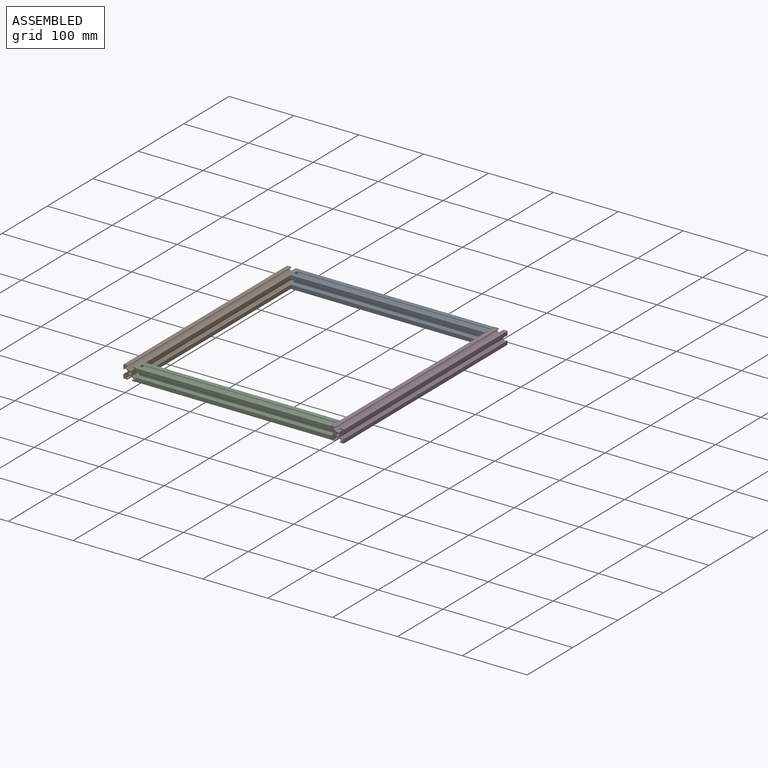
[diagram: assembled view]
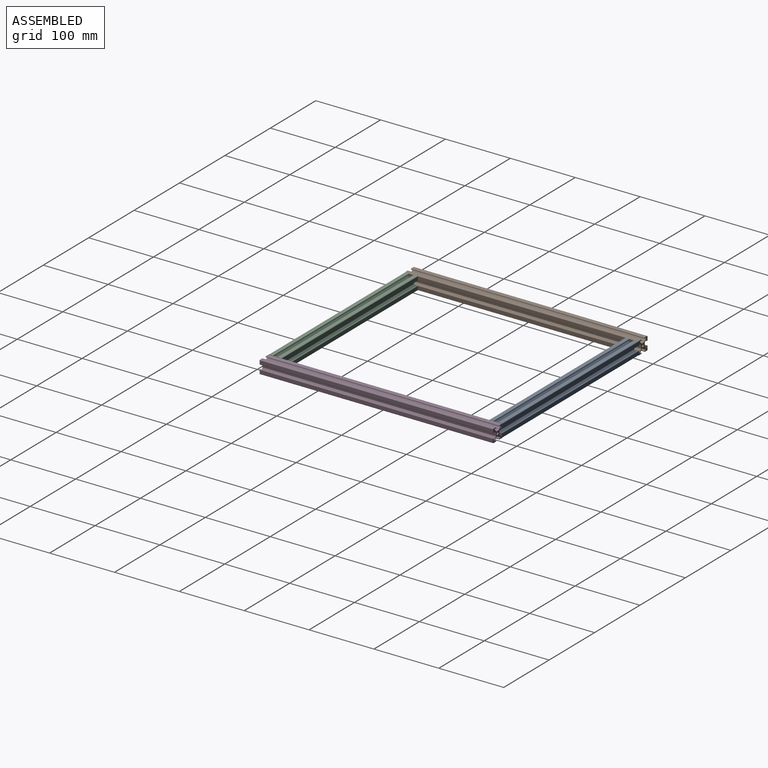
[diagram: assembled view, second angle]
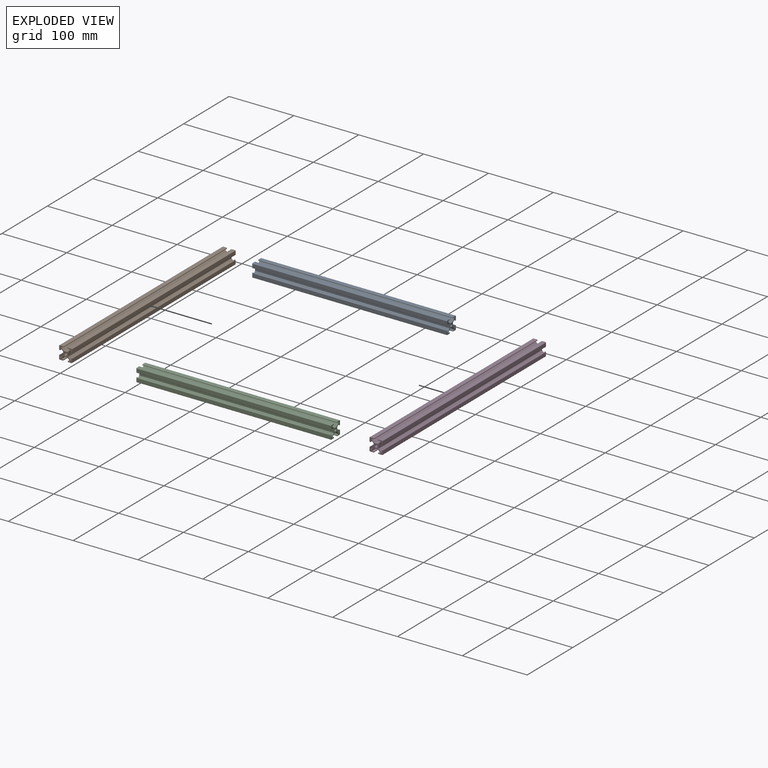
[diagram: exploded view]
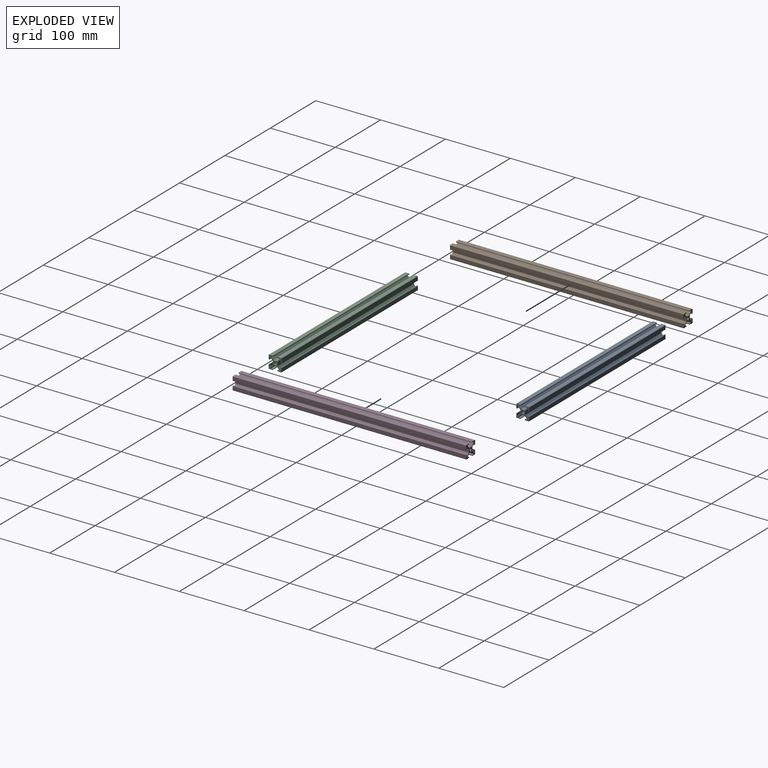
[diagram: exploded view, second angle]
ASSEMBLY  parts=4 mates=3
PART A: 59 faces, bbox 20x20x300 mm
  f0: plane 300x1.04mm, normal (0,-1,0), area 311.8mm2, adj f1,f56,f57,f58
  f1: plane 300x3.81mm, normal (-0.71,-0.71,0), area 1616.7mm2, adj f0,f2,f57,f58
  f2: plane 300x5.38mm, normal (-1,0,0), area 1613.6mm2, adj f1,f3,f57,f58
  f3: plane 300x3.81mm, normal (-0.71,0.71,0), area 1616.7mm2, adj f2,f4,f57,f58
  f4: plane 300x1.04mm, normal (0,1,0), area 311.8mm2, adj f3,f5,f57,f58
  f5: plane 300x3.25mm, normal (1,0,0), area 975mm2, adj f4,f6,f57,f58
  f6: plane 300x0.6mm, normal (0,1,0), area 180mm2, adj f5,f7,f57,f58
  f7: cylinder r=0.8mm len=300mm, axis (0,0,-1), area 377mm2, adj f6,f8,f57,f58
  f8: plane 300x5.15mm, normal (-1,0,0), area 1545mm2, adj f7,f9,f57,f58
  f9: cylinder r=0.8mm len=300mm, axis (0,0,-1), area 377mm2, adj f8,f10,f57,f58
  f10: plane 300x5.15mm, normal (0,-1,0), area 1545mm2, adj f9,f11,f57,f58
  f11: cylinder r=0.8mm len=300mm, axis (0,0,-1), area 377mm2, adj f10,f12,f57,f58
  f12: plane 300x0.6mm, normal (1,0,0), area 180mm2, adj f11,f13,f57,f58
  f13: plane 300x3.25mm, normal (0,1,0), area 975mm2, adj f12,f14,f57,f58
  f14: plane 300x1.04mm, normal (1,0,0), area 311.8mm2, adj f13,f15,f57,f58
  f15: plane 300x3.81mm, normal (0.71,-0.71,0), area 1616.7mm2, adj f14,f16,f57,f58
  f16: plane 300x5.38mm, normal (0,-1,0), area 1613.6mm2, adj f15,f17,f57,f58
  f17: plane 300x3.81mm, normal (-0.71,-0.71,0), area 1616.7mm2, adj f16,f18,f57,f58
  f18: plane 300x1.04mm, normal (-1,0,0), area 311.8mm2, adj f17,f19,f57,f58
  f19: plane 300x3.25mm, normal (0,1,0), area 975mm2, adj f18,f20,f57,f58
  f20: plane 300x0.6mm, normal (-1,0,0), area 180mm2, adj f19,f21,f57,f58
  f21: cylinder r=0.8mm len=300mm, axis (0,0,-1), area 377mm2, adj f20,f22,f57,f58
  f22: plane 300x5.15mm, normal (0,-1,0), area 1545mm2, adj f21,f23,f57,f58
  f23: cylinder r=0.8mm len=300mm, axis (0,0,-1), area 377mm2, adj f22,f24,f57,f58
  f24: plane 300x5.15mm, normal (1,0,0), area 1545mm2, adj f23,f25,f57,f58
  f25: cylinder r=0.8mm len=300mm, axis (0,0,-1), area 377mm2, adj f24,f26,f57,f58
  f26: plane 300x0.6mm, normal (0,1,0), area 180mm2, adj f25,f27,f57,f58
  f27: plane 300x3.25mm, normal (-1,0,0), area 975mm2, adj f26,f28,f57,f58
  f28: plane 300x1.04mm, normal (0,1,0), area 311.8mm2, adj f27,f29,f57,f58
  f29: plane 300x3.81mm, normal (0.71,0.71,0), area 1616.7mm2, adj f28,f30,f57,f58
  f30: plane 300x5.38mm, normal (1,0,0), area 1613.6mm2, adj f29,f31,f57,f58
  f31: plane 300x3.81mm, normal (0.71,-0.71,0), area 1616.7mm2, adj f30,f32,f57,f58
  f32: plane 300x1.04mm, normal (0,-1,0), area 311.8mm2, adj f31,f33,f57,f58
  f33: plane 300x3.25mm, normal (-1,0,0), area 975mm2, adj f32,f34,f57,f58
  f34: plane 300x0.6mm, normal (0,-1,0), area 180mm2, adj f33,f35,f57,f58
  f35: cylinder r=0.8mm len=300mm, axis (0,0,-1), area 377mm2, adj f34,f36,f57,f58
  f36: plane 300x5.15mm, normal (1,0,0), area 1545mm2, adj f35,f37,f57,f58
  f37: cylinder r=0.8mm len=300mm, axis (0,0,-1), area 377mm2, adj f36,f38,f57,f58
  f38: plane 300x5.15mm, normal (0,1,0), area 1545mm2, adj f37,f39,f57,f58
  f39: cylinder r=0.8mm len=300mm, axis (0,0,-1), area 377mm2, adj f38,f40,f57,f58
  f40: plane 300x0.6mm, normal (-1,0,0), area 180mm2, adj f39,f41,f57,f58
  f41: plane 300x3.25mm, normal (0,-1,0), area 975mm2, adj f40,f42,f57,f58
  f42: plane 300x1.04mm, normal (-1,0,0), area 311.8mm2, adj f41,f43,f57,f58
  f43: plane 300x3.81mm, normal (-0.71,0.71,0), area 1616.7mm2, adj f42,f44,f57,f58
  f44: plane 300x5.38mm, normal (0,1,0), area 1613.6mm2, adj f43,f45,f57,f58
  f45: plane 300x3.81mm, normal (0.71,0.71,0), area 1616.7mm2, adj f44,f46,f57,f58
  f46: plane 300x1.04mm, normal (1,0,0), area 311.8mm2, adj f45,f47,f57,f58
  f47: plane 300x3.25mm, normal (0,-1,0), area 975mm2, adj f46,f48,f57,f58
  f48: plane 300x0.6mm, normal (1,0,0), area 180mm2, adj f47,f49,f57,f58
  f49: cylinder r=0.8mm len=300mm, axis (0,0,-1), area 377mm2, adj f48,f50,f57,f58
  f50: plane 300x5.15mm, normal (0,1,0), area 1545mm2, adj f49,f51,f57,f58
  f51: cylinder r=0.8mm len=300mm, axis (0,0,-1), area 377mm2, adj f50,f52,f57,f58
  f52: plane 300x5.15mm, normal (-1,0,0), area 1545mm2, adj f51,f53,f57,f58
  f53: cylinder r=0.8mm len=300mm, axis (0,0,-1), area 377mm2, adj f52,f54,f57,f58
  f54: plane 300x0.6mm, normal (0,-1,0), area 180mm2, adj f53,f56,f57,f58
  f55: cylinder r=2.15mm len=300mm, axis (0,0,-1), area 4052.7mm2, adj f57,f58
  f56: plane 300x3.25mm, normal (1,0,0), area 975mm2, adj f0,f54,f57,f58
  f57: plane 20x20mm, normal (0,0,1), area 153.3mm2, adj f0,f1,f2,f3,f4,f5,f6,f7
  f58: plane 20x20mm, normal (0,0,-1), area 153.3mm2, adj f0,f1,f2,f3,f4,f5,f6,f7
PART B: 59 faces, bbox 20x20x360 mm
  f0: plane 360x1.04mm, normal (0,-1,0), area 374.2mm2, adj f1,f56,f57,f58
  f1: plane 360x3.81mm, normal (-0.71,-0.71,0), area 1940.1mm2, adj f0,f2,f57,f58
  f2: plane 360x5.38mm, normal (-1,0,0), area 1936.3mm2, adj f1,f3,f57,f58
  f3: plane 360x3.81mm, normal (-0.71,0.71,0), area 1940.1mm2, adj f2,f4,f57,f58
  f4: plane 360x1.04mm, normal (0,1,0), area 374.2mm2, adj f3,f5,f57,f58
  f5: plane 360x3.25mm, normal (1,0,0), area 1170mm2, adj f4,f6,f57,f58
  f6: plane 360x0.6mm, normal (0,1,0), area 216mm2, adj f5,f7,f57,f58
  f7: cylinder r=0.8mm len=360mm, axis (0,0,-1), area 452.4mm2, adj f6,f8,f57,f58
  f8: plane 360x5.15mm, normal (-1,0,0), area 1854mm2, adj f7,f9,f57,f58
  f9: cylinder r=0.8mm len=360mm, axis (0,0,-1), area 452.4mm2, adj f8,f10,f57,f58
  f10: plane 360x5.15mm, normal (0,-1,0), area 1854mm2, adj f9,f11,f57,f58
  f11: cylinder r=0.8mm len=360mm, axis (0,0,-1), area 452.4mm2, adj f10,f12,f57,f58
  f12: plane 360x0.6mm, normal (1,0,0), area 216mm2, adj f11,f13,f57,f58
  f13: plane 360x3.25mm, normal (0,1,0), area 1170mm2, adj f12,f14,f57,f58
  f14: plane 360x1.04mm, normal (1,0,0), area 374.2mm2, adj f13,f15,f57,f58
  f15: plane 360x3.81mm, normal (0.71,-0.71,0), area 1940.1mm2, adj f14,f16,f57,f58
  f16: plane 360x5.38mm, normal (0,-1,0), area 1936.3mm2, adj f15,f17,f57,f58
  f17: plane 360x3.81mm, normal (-0.71,-0.71,0), area 1940.1mm2, adj f16,f18,f57,f58
  f18: plane 360x1.04mm, normal (-1,0,0), area 374.2mm2, adj f17,f19,f57,f58
  f19: plane 360x3.25mm, normal (0,1,0), area 1170mm2, adj f18,f20,f57,f58
  f20: plane 360x0.6mm, normal (-1,0,0), area 216mm2, adj f19,f21,f57,f58
  f21: cylinder r=0.8mm len=360mm, axis (0,0,-1), area 452.4mm2, adj f20,f22,f57,f58
  f22: plane 360x5.15mm, normal (0,-1,0), area 1854mm2, adj f21,f23,f57,f58
  f23: cylinder r=0.8mm len=360mm, axis (0,0,-1), area 452.4mm2, adj f22,f24,f57,f58
  f24: plane 360x5.15mm, normal (1,0,0), area 1854mm2, adj f23,f25,f57,f58
  f25: cylinder r=0.8mm len=360mm, axis (0,0,-1), area 452.4mm2, adj f24,f26,f57,f58
  f26: plane 360x0.6mm, normal (0,1,0), area 216mm2, adj f25,f27,f57,f58
  f27: plane 360x3.25mm, normal (-1,0,0), area 1170mm2, adj f26,f28,f57,f58
  f28: plane 360x1.04mm, normal (0,1,0), area 374.2mm2, adj f27,f29,f57,f58
  f29: plane 360x3.81mm, normal (0.71,0.71,0), area 1940.1mm2, adj f28,f30,f57,f58
  f30: plane 360x5.38mm, normal (1,0,0), area 1936.3mm2, adj f29,f31,f57,f58
  f31: plane 360x3.81mm, normal (0.71,-0.71,0), area 1940.1mm2, adj f30,f32,f57,f58
  f32: plane 360x1.04mm, normal (0,-1,0), area 374.2mm2, adj f31,f33,f57,f58
  f33: plane 360x3.25mm, normal (-1,0,0), area 1170mm2, adj f32,f34,f57,f58
  f34: plane 360x0.6mm, normal (0,-1,0), area 216mm2, adj f33,f35,f57,f58
  f35: cylinder r=0.8mm len=360mm, axis (0,0,-1), area 452.4mm2, adj f34,f36,f57,f58
  f36: plane 360x5.15mm, normal (1,0,0), area 1854mm2, adj f35,f37,f57,f58
  f37: cylinder r=0.8mm len=360mm, axis (0,0,-1), area 452.4mm2, adj f36,f38,f57,f58
  f38: plane 360x5.15mm, normal (0,1,0), area 1854mm2, adj f37,f39,f57,f58
  f39: cylinder r=0.8mm len=360mm, axis (0,0,-1), area 452.4mm2, adj f38,f40,f57,f58
  f40: plane 360x0.6mm, normal (-1,0,0), area 216mm2, adj f39,f41,f57,f58
  f41: plane 360x3.25mm, normal (0,-1,0), area 1170mm2, adj f40,f42,f57,f58
  f42: plane 360x1.04mm, normal (-1,0,0), area 374.2mm2, adj f41,f43,f57,f58
  f43: plane 360x3.81mm, normal (-0.71,0.71,0), area 1940.1mm2, adj f42,f44,f57,f58
  f44: plane 360x5.38mm, normal (0,1,0), area 1936.3mm2, adj f43,f45,f57,f58
  f45: plane 360x3.81mm, normal (0.71,0.71,0), area 1940.1mm2, adj f44,f46,f57,f58
  f46: plane 360x1.04mm, normal (1,0,0), area 374.2mm2, adj f45,f47,f57,f58
  f47: plane 360x3.25mm, normal (0,-1,0), area 1170mm2, adj f46,f48,f57,f58
  f48: plane 360x0.6mm, normal (1,0,0), area 216mm2, adj f47,f49,f57,f58
  f49: cylinder r=0.8mm len=360mm, axis (0,0,-1), area 452.4mm2, adj f48,f50,f57,f58
  f50: plane 360x5.15mm, normal (0,1,0), area 1854mm2, adj f49,f51,f57,f58
  f51: cylinder r=0.8mm len=360mm, axis (0,0,-1), area 452.4mm2, adj f50,f52,f57,f58
  f52: plane 360x5.15mm, normal (-1,0,0), area 1854mm2, adj f51,f53,f57,f58
  f53: cylinder r=0.8mm len=360mm, axis (0,0,-1), area 452.4mm2, adj f52,f54,f57,f58
  f54: plane 360x0.6mm, normal (0,-1,0), area 216mm2, adj f53,f56,f57,f58
  f55: cylinder r=2.15mm len=360mm, axis (0,0,-1), area 4863.2mm2, adj f57,f58
  f56: plane 360x3.25mm, normal (1,0,0), area 1170mm2, adj f0,f54,f57,f58
  f57: plane 20x20mm, normal (0,0,1), area 153.3mm2, adj f0,f1,f2,f3,f4,f5,f6,f7
  f58: plane 20x20mm, normal (0,0,-1), area 153.3mm2, adj f0,f1,f2,f3,f4,f5,f6,f7
PART C: same geometry as A
PART D: same geometry as B
PLACE A rot(axis=(0,-1,0),90deg) t=(303.37,170,-30)mm
PLACE B rot(axis=(1,0,0),90deg) t=(-86.63,180,10)mm
PLACE C rot(axis=(0.71,0,0.71),180deg) t=(3.37,-170,-30)mm
PLACE D rot(axis=(-1,0,0),90deg) t=(233.37,-180,10)mm
MATE fastened B.f24 <-> C.f58  axis (1,0,0) through (3.37,-180,3.37)mm
MATE fastened A.f38 <-> B.f58  axis (0,1,0) through (3.37,180,16.62)mm
MATE fastened D.f8 <-> A.f58  axis (-1,0,0) through (303.37,180,16.62)mm
